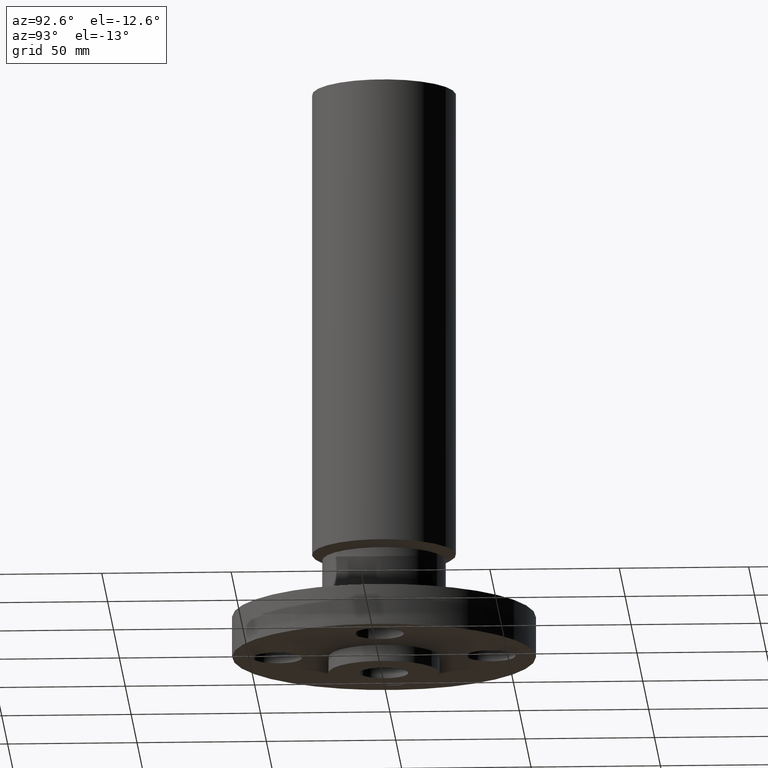
[diagram: clean part render]
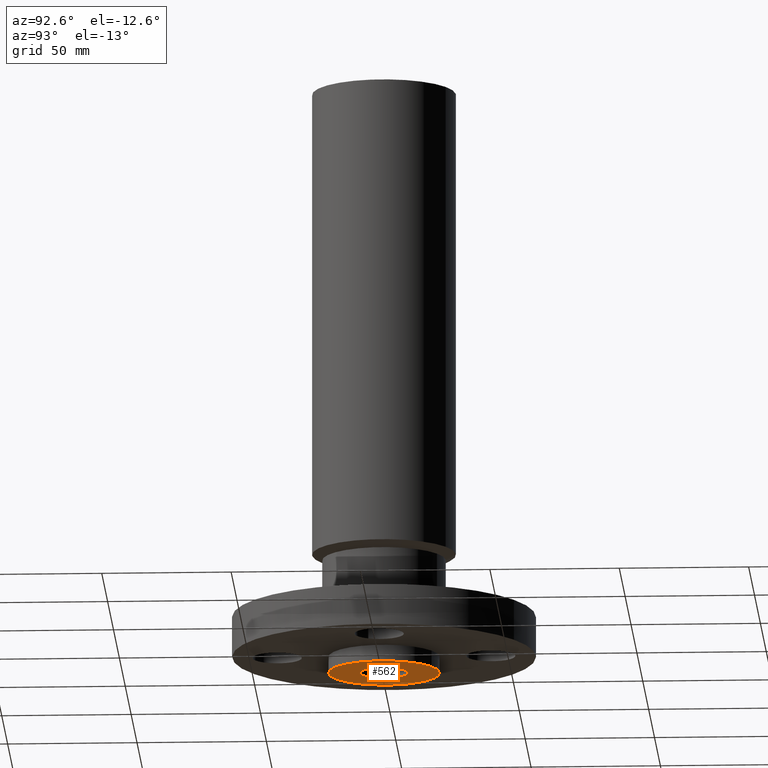
[diagram: same view with one face highlighted and labeled with its STEP entity id]
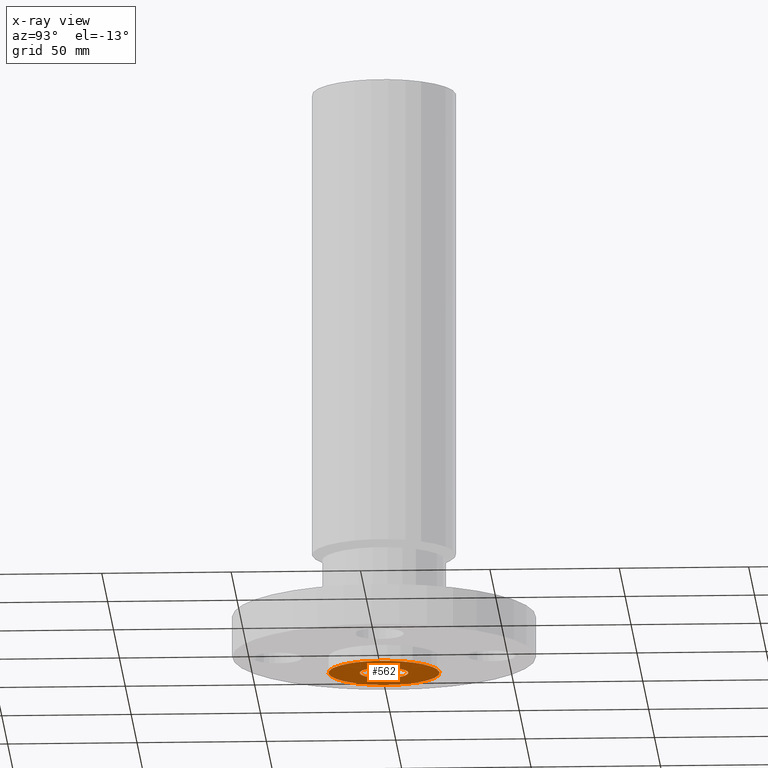
[diagram: x-ray of the same camera — body ghosted, the highlighted face saturated]
A machine part, auxiliary view. The second image highlights one B-rep face of the part: STEP entity #562.
The next image is the same camera in x-ray: the body ghosted, the highlighted face saturated — about 0% of this face is hidden behind the body in this view.
In plain terms, the highlighted planar face has unit normal (0, 0, -1).
Its self-contained STEP definition (entity closure, byte-faithful):
#506=AXIS2_PLACEMENT_3D('Circle Axis2P3D',#504,#505,$) ;
#525=AXIS2_PLACEMENT_3D('Circle Axis2P3D',#523,#524,$) ;
#538=AXIS2_PLACEMENT_3D('Plane Axis2P3D',#535,#536,#537) ;
#542=AXIS2_PLACEMENT_3D('Circle Axis2P3D',#540,#541,$) ;
#551=AXIS2_PLACEMENT_3D('Circle Axis2P3D',#549,#550,$) ;
#501=CARTESIAN_POINT('Vertex',(0.177387449284,0.324705547901,-0.250000000001)) ;
#504=CARTESIAN_POINT('Axis2P3D Location',(0.,0.,-0.250000000001)) ;
#508=CARTESIAN_POINT('Vertex',(-0.177387449284,-0.324705547901,-0.250000000001)) ;
#523=CARTESIAN_POINT('Axis2P3D Location',(0.,0.,-0.250000000001)) ;
#535=CARTESIAN_POINT('Axis2P3D Location',(0.,0.370000000001,-0.250000000001)) ;
#540=CARTESIAN_POINT('Axis2P3D Location',(0.,0.,-0.250000000001)) ;
#544=CARTESIAN_POINT('Vertex',(-0.405114580122,-0.7415572648,-0.250000000001)) ;
#546=CARTESIAN_POINT('Vertex',(0.405114580122,0.7415572648,-0.250000000001)) ;
#549=CARTESIAN_POINT('Axis2P3D Location',(0.,0.,-0.250000000001)) ;
#505=DIRECTION('Axis2P3D Direction',(0.,0.,-0.0393700787402)) ;
#524=DIRECTION('Axis2P3D Direction',(0.,0.,-0.0393700787402)) ;
#536=DIRECTION('Axis2P3D Direction',(0.,0.,-0.0393700787402)) ;
#537=DIRECTION('Axis2P3D XDirection',(0.0393700787402,0.,0.)) ;
#541=DIRECTION('Axis2P3D Direction',(0.,0.,-0.0393700787402)) ;
#550=DIRECTION('Axis2P3D Direction',(0.,0.,-0.0393700787402)) ;
#555=ORIENTED_EDGE('',*,*,#548,.T.) ;
#556=ORIENTED_EDGE('',*,*,#553,.T.) ;
#559=ORIENTED_EDGE('',*,*,#510,.F.) ;
#560=ORIENTED_EDGE('',*,*,#527,.F.) ;
#561=FACE_BOUND('',#558,.T.) ;
#562=ADVANCED_FACE('PartBody',(#557,#561),#539,.T.) ;
#507=CIRCLE('generated circle',#506,0.370000000001) ;
#526=CIRCLE('generated circle',#525,0.370000000001) ;
#543=CIRCLE('generated circle',#542,0.845000000003) ;
#552=CIRCLE('generated circle',#551,0.845000000003) ;
#510=EDGE_CURVE('',#502,#509,#507,.T.) ;
#527=EDGE_CURVE('',#509,#502,#526,.T.) ;
#548=EDGE_CURVE('',#545,#547,#543,.T.) ;
#553=EDGE_CURVE('',#547,#545,#552,.T.) ;
#554=EDGE_LOOP('',(#555,#556)) ;
#558=EDGE_LOOP('',(#559,#560)) ;
#557=FACE_OUTER_BOUND('',#554,.T.) ;
#539=PLANE('',#538) ;
#502=VERTEX_POINT('',#501) ;
#509=VERTEX_POINT('',#508) ;
#545=VERTEX_POINT('',#544) ;
#547=VERTEX_POINT('',#546) ;